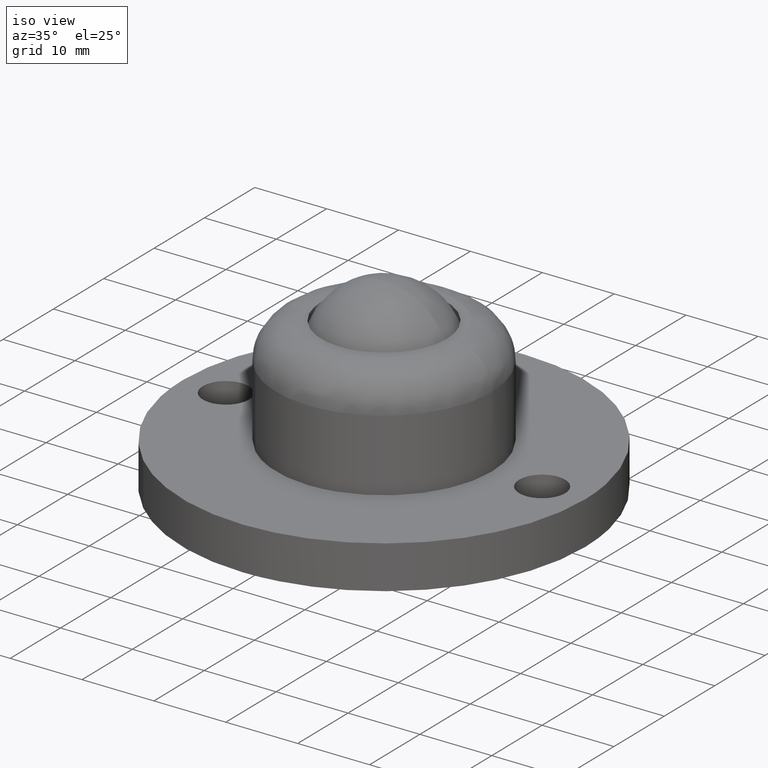
[diagram: clean part render]
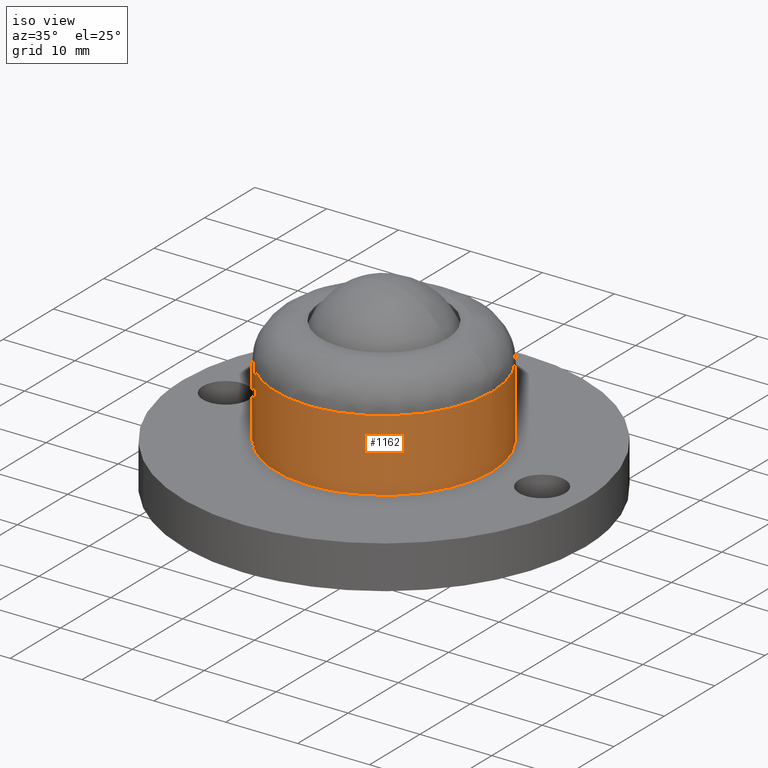
[diagram: same view with one face highlighted and labeled with its STEP entity id]
A machine part, iso view. The second image highlights one B-rep face of the part: STEP entity #1162.
In plain terms, the highlighted face is a freeform B-spline surface patch.
Its self-contained STEP definition (entity closure, byte-faithful):
#836=CARTESIAN_POINT('',(14.998815663056909,0.188490598256681,16.000000000028351));
#837=VERTEX_POINT('',#836);
#852=CARTESIAN_POINT('',(10.187777157768441,11.009504829175681,16.000000000024109));
#853=VERTEX_POINT('',#852);
#854=CARTESIAN_POINT('',(10.187777157768441,11.009504829175681,16.000000000024109));
#855=CARTESIAN_POINT('',(10.839350727993770,10.406671722140560,16.000000000024709));
#856=CARTESIAN_POINT('',(11.821432945125579,9.320873810758158,16.000000000025612));
#857=CARTESIAN_POINT('',(13.092581725004910,7.420534241809883,16.000000000026759));
#858=CARTESIAN_POINT('',(14.102831959163099,5.329665868927488,16.000000000027590));
#859=CARTESIAN_POINT('',(14.813424366985330,2.817647700116391,16.000000000028439));
#860=CARTESIAN_POINT('',(14.988125687793660,1.044387218121508,16.000000000028169));
#861=CARTESIAN_POINT('',(14.998815663056909,0.188490598256681,16.000000000028351));
#862=B_SPLINE_CURVE_WITH_KNOTS('',3,(#854,#855,#856,#857,#858,#859,#860,#861),.UNSPECIFIED.,.F.,.U.,(4,1,1,1,1,4),(0.000000011828549,2.662994156154062,4.374927556151388,6.847689595747325,9.605806306162791,12.173691903141931),.UNSPECIFIED.);
#863=EDGE_CURVE('',#853,#837,#862,.T.);
#955=CARTESIAN_POINT('',(-10.187777157768441,-11.009504829175690,16.000000000024102));
#956=VERTEX_POINT('',#955);
#968=CARTESIAN_POINT('',(0.094237883479936,-14.999703971122511,16.000000000014179));
#969=VERTEX_POINT('',#968);
#970=CARTESIAN_POINT('',(0.094237883479936,-14.999703971122511,16.000000000014179));
#971=CARTESIAN_POINT('',(-1.111638862749991,-15.007593900225920,16.000000000015259));
#972=CARTESIAN_POINT('',(-3.201243809358497,-14.767134057480501,16.000000000017391));
#973=CARTESIAN_POINT('',(-6.085081956337157,-13.801513283906990,16.000000000020229));
#974=CARTESIAN_POINT('',(-8.333795846247371,-12.556926919397490,16.000000000022212));
#975=CARTESIAN_POINT('',(-9.648112347047263,-11.508912649489909,16.000000000023700));
#976=CARTESIAN_POINT('',(-10.187777157768441,-11.009504829175690,16.000000000024102));
#977=B_SPLINE_CURVE_WITH_KNOTS('',3,(#970,#971,#972,#973,#974,#975,#976),.UNSPECIFIED.,.F.,.U.,(4,1,1,1,4),(0.000000010007371,3.617620953228951,6.264647123078524,9.088167222938841,11.294032616947780),.UNSPECIFIED.);
#978=EDGE_CURVE('',#969,#956,#977,.T.);
#980=CARTESIAN_POINT('',(14.999999999999700,0.0,16.0));
#981=VERTEX_POINT('',#980);
#982=CARTESIAN_POINT('',(14.999999999999700,0.0,16.0));
#983=CARTESIAN_POINT('',(15.000049350712120,-0.763919839272527,16.000000000000011));
#984=CARTESIAN_POINT('',(14.901734651123430,-2.047290388768373,16.000000000000089));
#985=CARTESIAN_POINT('',(14.540919645675610,-3.784917162419245,16.000000000000451));
#986=CARTESIAN_POINT('',(13.997939917733220,-5.506336039490239,16.000000000001009));
#987=CARTESIAN_POINT('',(13.031482425436259,-7.592360577852523,16.000000000001819));
#988=CARTESIAN_POINT('',(11.473930591467919,-9.801130858795274,16.000000000003631));
#989=CARTESIAN_POINT('',(9.596695463565007,-11.610925649067619,16.000000000005048));
#990=CARTESIAN_POINT('',(7.962673519767044,-12.748664229661729,16.000000000006811));
#991=CARTESIAN_POINT('',(6.458337481296235,-13.567059214938320,16.000000000008111));
#992=CARTESIAN_POINT('',(4.849344520775965,-14.242469142512260,16.000000000009688));
#993=CARTESIAN_POINT('',(2.659981553274595,-14.831828937251499,16.000000000011742));
#994=CARTESIAN_POINT('',(1.010931536863265,-14.994043661234061,16.000000000013319));
#995=CARTESIAN_POINT('',(0.094237883479936,-14.999703971122511,16.000000000014179));
#996=B_SPLINE_CURVE_WITH_KNOTS('',3,(#982,#983,#984,#985,#986,#987,#988,#989,#990,#991,#992,#993,#994,#995),.UNSPECIFIED.,.F.,.U.,(4,1,1,1,1,1,1,1,1,1,1,4),(0.000000043158789,2.291753721640276,3.850165607686915,5.316910063546843,7.700357803954621,10.725516345794251,13.383946917941239,15.492373854090911,16.684093316406059,18.517521080349631,20.717623584914190,23.467742918632531),.UNSPECIFIED.);
#997=EDGE_CURVE('',#981,#969,#996,.T.);
#999=CARTESIAN_POINT('',(14.998815663056909,0.188490598256681,16.000000000028351));
#1000=CARTESIAN_POINT('',(14.999999999999700,0.0,16.0));
#1001=QUASI_UNIFORM_CURVE('',1,(#999,#1000),.UNSPECIFIED.,.F.,.U.);
#1002=EDGE_CURVE('',#837,#981,#1001,.T.);
#1031=CARTESIAN_POINT('',(10.187777206663190,11.009504958492119,6.000000000000091));
#1032=VERTEX_POINT('',#1031);
#1033=CARTESIAN_POINT('',(10.187777157768441,11.009504829175681,16.000000000024109));
#1034=CARTESIAN_POINT('',(10.187777206663190,11.009504958492119,6.000000000000091));
#1035=QUASI_UNIFORM_CURVE('',1,(#1033,#1034),.UNSPECIFIED.,.F.,.U.);
#1036=EDGE_CURVE('',#853,#1032,#1035,.T.);
#1071=CARTESIAN_POINT('',(-10.187777206663080,-11.009504958492011,6.000000000000091));
#1072=VERTEX_POINT('',#1071);
#1085=CARTESIAN_POINT('',(-10.187777157768441,-11.009504829175690,16.000000000024102));
#1086=CARTESIAN_POINT('',(-10.187777206663080,-11.009504958492011,6.000000000000091));
#1087=QUASI_UNIFORM_CURVE('',1,(#1085,#1086),.UNSPECIFIED.,.F.,.U.);
#1088=EDGE_CURVE('',#956,#1072,#1087,.T.);
#1093=CARTESIAN_POINT('',(10.187777142500170,11.009504843304359,16.250000000029061));
#1094=CARTESIAN_POINT('',(21.197281985804530,0.821727700804189,16.250000000029065));
#1095=CARTESIAN_POINT('',(11.009504843304359,-10.187777142500170,16.250000000029061));
#1096=CARTESIAN_POINT('',(0.821727700804189,-21.197281985804530,16.250000000029065));
#1097=CARTESIAN_POINT('',(-10.187777142500170,-11.009504843304359,16.250000000029061));
#1098=CARTESIAN_POINT('',(10.187777142500170,11.009504843304359,5.743749999999366));
#1099=CARTESIAN_POINT('',(21.197281985804530,0.821727700804189,5.743749999999367));
#1100=CARTESIAN_POINT('',(11.009504843304359,-10.187777142500170,5.743749999999366));
#1101=CARTESIAN_POINT('',(0.821727700804189,-21.197281985804530,5.743749999999367));
#1102=CARTESIAN_POINT('',(-10.187777142500170,-11.009504843304359,5.743749999999366));
#1110=(BOUNDED_SURFACE()B_SPLINE_SURFACE(2,1,((#1093,#1098),(#1094,#1099),(#1095,#1100),(#1096,#1101),(#1097,#1102)),.UNSPECIFIED.,.F.,.F.,.U.)B_SPLINE_SURFACE_WITH_KNOTS((3,2,3),(2,2),(0.0,24.852813742385202,49.705627484770403),(0.0,10.506250000029700),.UNSPECIFIED.)GEOMETRIC_REPRESENTATION_ITEM()RATIONAL_B_SPLINE_SURFACE(((1.0,1.0),(0.707106781186548,0.707106781186548),(1.0,1.0),(0.707106781186548,0.707106781186548),(1.0,1.0)))REPRESENTATION_ITEM('')SURFACE());
#1111=ORIENTED_EDGE('',*,*,#978,.T.);
#1112=ORIENTED_EDGE('',*,*,#1088,.T.);
#1113=CARTESIAN_POINT('',(-0.000000514032385,-14.999999999999689,6.000000000000091));
#1114=VERTEX_POINT('',#1113);
#1115=CARTESIAN_POINT('',(-0.000000514032385,-14.999999999999689,6.000000000000091));
#1116=CARTESIAN_POINT('',(-0.612486380762245,-15.000007512640501,6.000000000000085));
#1117=CARTESIAN_POINT('',(-2.041632659957544,-14.912391503870349,6.000000000000096));
#1118=CARTESIAN_POINT('',(-4.104840186136603,-14.485224483817150,6.000000000000114));
#1119=CARTESIAN_POINT('',(-6.271835620210035,-13.687035738509350,5.999999999999959));
#1120=CARTESIAN_POINT('',(-8.298802825095629,-12.575349904580261,6.000000000000405));
#1121=CARTESIAN_POINT('',(-9.588416002722303,-11.564199267907529,5.999999999999914));
#1122=CARTESIAN_POINT('',(-10.187777206663080,-11.009504958492011,6.000000000000091));
#1123=B_SPLINE_CURVE_WITH_KNOTS('',3,(#1115,#1116,#1117,#1118,#1119,#1120,#1121,#1122),.UNSPECIFIED.,.F.,.U.,(4,1,1,1,1,4),(0.000000010247307,1.837463576933532,4.287428578647943,6.299882818497271,8.749840359497647,11.199793191182140),.UNSPECIFIED.);
#1124=EDGE_CURVE('',#1114,#1072,#1123,.T.);
#1125=ORIENTED_EDGE('',*,*,#1124,.F.);
#1126=CARTESIAN_POINT('',(14.999999999999700,0.0,6.000000000000091));
#1127=VERTEX_POINT('',#1126);
#1128=CARTESIAN_POINT('',(14.999999999999700,0.0,6.000000000000091));
#1129=CARTESIAN_POINT('',(15.000074989132790,-0.859028561157862,6.000000000000092));
#1130=CARTESIAN_POINT('',(14.873135216475511,-2.331619973652520,6.000000000000092));
#1131=CARTESIAN_POINT('',(14.411484289227801,-4.275486703482938,6.000000000000091));
#1132=CARTESIAN_POINT('',(13.774749252262369,-6.038015752824640,6.000000000000098));
#1133=CARTESIAN_POINT('',(12.850795486046691,-7.845957132644837,6.000000000000031));
#1134=CARTESIAN_POINT('',(11.522617060220361,-9.695436405983568,6.000000000000297));
#1135=CARTESIAN_POINT('',(9.992102601258972,-11.254362318997190,5.999999999999572));
#1136=CARTESIAN_POINT('',(8.429884911336441,-12.450521420028830,6.000000000001021));
#1137=CARTESIAN_POINT('',(6.975045998450100,-13.310414503479890,5.999999999998920));
#1138=CARTESIAN_POINT('',(5.355305826043135,-14.052333010226111,6.000000000000621));
#1139=CARTESIAN_POINT('',(3.067853891443439,-14.777058512150679,5.999999999999691));
#1140=CARTESIAN_POINT('',(1.165848423785105,-15.000278523035799,6.000000000000265));
#1141=CARTESIAN_POINT('',(-0.000000514032385,-14.999999999999689,6.000000000000091));
#1142=B_SPLINE_CURVE_WITH_KNOTS('',3,(#1128,#1129,#1130,#1131,#1132,#1133,#1134,#1135,#1136,#1137,#1138,#1139,#1140,#1141),.UNSPECIFIED.,.F.,.U.,(4,1,1,1,1,1,1,1,1,1,1,4),(0.000000042430347,2.577074003765791,4.417864152545988,5.982535173357384,8.191481220354053,10.492469042058600,12.793394615243740,14.726222933293659,16.382934603020232,17.855565148970069,20.064513218020121,23.561982153493940),.UNSPECIFIED.);
#1143=EDGE_CURVE('',#1127,#1114,#1142,.T.);
#1144=ORIENTED_EDGE('',*,*,#1143,.F.);
#1145=CARTESIAN_POINT('',(10.187777206663190,11.009504958492119,6.000000000000091));
#1146=CARTESIAN_POINT('',(10.825793576460260,10.419190775720940,6.000000000000093));
#1147=CARTESIAN_POINT('',(12.042248791890410,9.079397211945965,6.000000000000076));
#1148=CARTESIAN_POINT('',(13.512198221835259,6.718989046687209,6.000000000000124));
#1149=CARTESIAN_POINT('',(14.475388324627840,4.213197168492525,6.000000000000032));
#1150=CARTESIAN_POINT('',(14.921575609628221,1.931588104744306,6.000000000000221));
#1151=CARTESIAN_POINT('',(15.000008868001130,0.579473644619647,5.999999999999924));
#1152=CARTESIAN_POINT('',(14.999999999999700,0.0,6.000000000000091));
#1153=B_SPLINE_CURVE_WITH_KNOTS('',3,(#1145,#1146,#1147,#1148,#1149,#1150,#1151,#1152),.UNSPECIFIED.,.F.,.U.,(4,1,1,1,1,4),(0.000000012767995,2.607646497180639,5.408470164318436,8.305842821939400,10.623762905842790,12.362188529042729),.UNSPECIFIED.);
#1154=EDGE_CURVE('',#1032,#1127,#1153,.T.);
#1155=ORIENTED_EDGE('',*,*,#1154,.F.);
#1156=ORIENTED_EDGE('',*,*,#1036,.F.);
#1157=ORIENTED_EDGE('',*,*,#863,.T.);
#1158=ORIENTED_EDGE('',*,*,#1002,.T.);
#1159=ORIENTED_EDGE('',*,*,#997,.T.);
#1160=EDGE_LOOP('',(#1111,#1112,#1125,#1144,#1155,#1156,#1157,#1158,#1159));
#1161=FACE_OUTER_BOUND('',#1160,.T.);
#1162=ADVANCED_FACE('',(#1161),#1110,.T.);